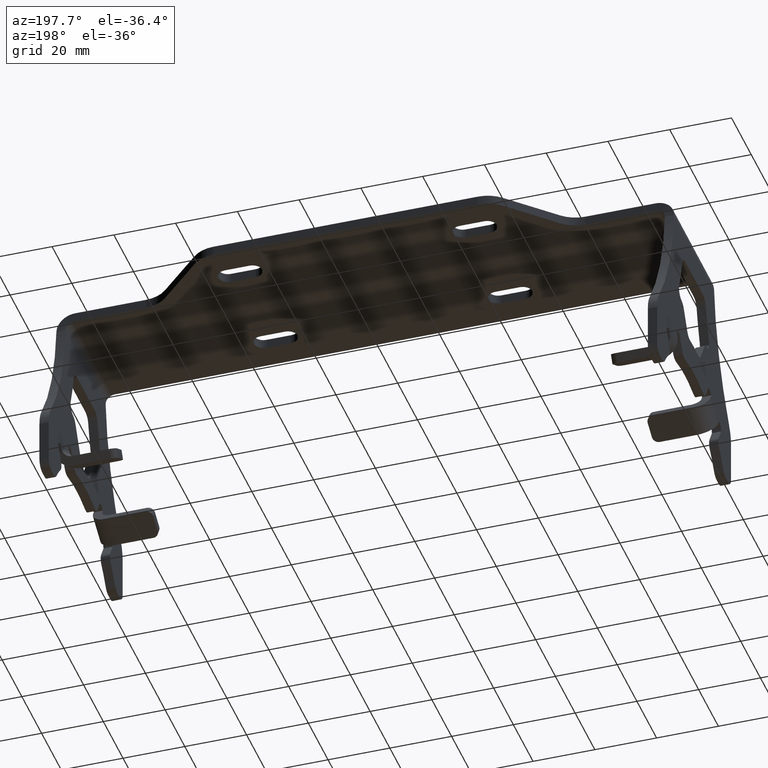
[diagram: clean part render]
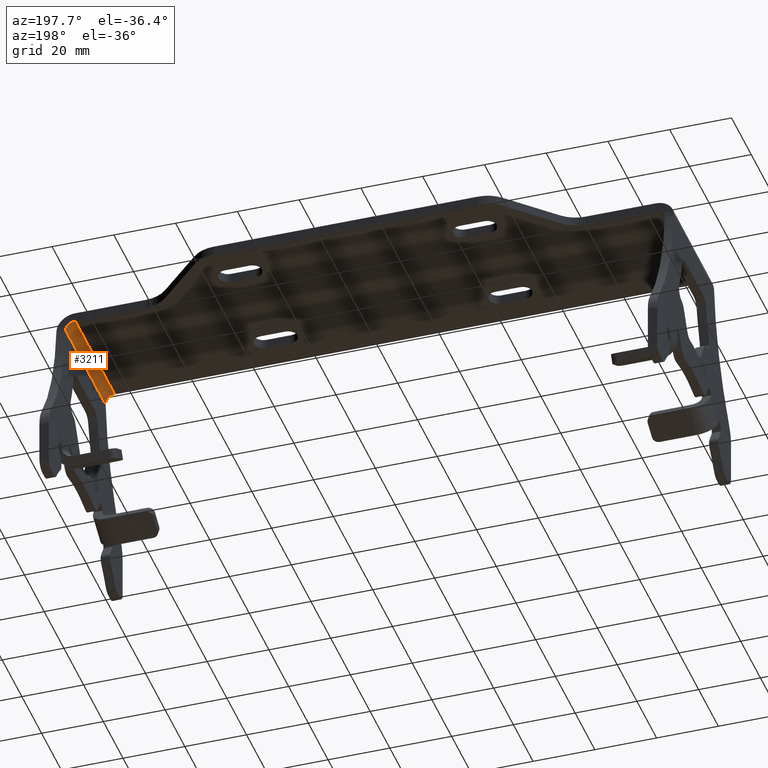
[diagram: same view with one face highlighted and labeled with its STEP entity id]
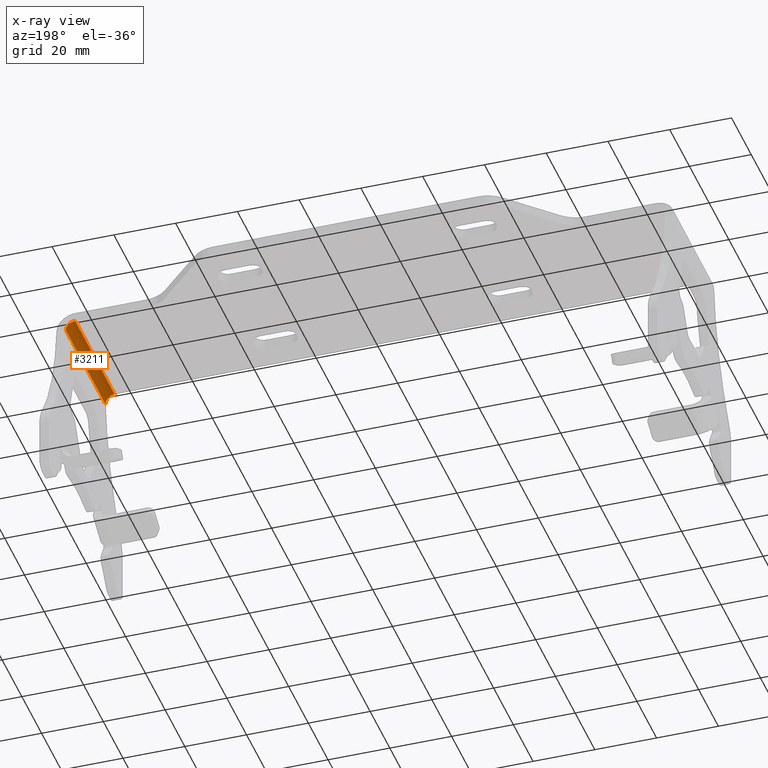
[diagram: x-ray of the same camera — body ghosted, the highlighted face saturated]
A machine part, auxiliary view. The second image highlights one B-rep face of the part: STEP entity #3211.
The next image is the same camera in x-ray: the body ghosted, the highlighted face saturated — about 0% of this face is hidden behind the body in this view.
In plain terms, the highlighted cylindrical surface (edge-blend (fillet) strip) has radius 3 mm, axis along (0, 1, 0).
Its self-contained STEP definition (entity closure, byte-faithful):
#19=B_SPLINE_CURVE_WITH_KNOTS('',3,(#4917,#4918,#4919,#4920,#4921,#4922,
#4923,#4924,#4925,#4926,#4927,#4928,#4929,#4930),.UNSPECIFIED.,.F.,.F.,
(4,2,2,2,2,2,4),(-0.559564175444713,-0.558436880374042,-0.472086382768004,
-0.35490695638666,-0.23730327061448,-0.119070995263127,-0.0857230420359073),
 .UNSPECIFIED.);
#20=B_SPLINE_CURVE_WITH_KNOTS('',3,(#4933,#4934,#4935,#4936,#4937,#4938,
#4939,#4940,#4941,#4942),.UNSPECIFIED.,.F.,.F.,(4,3,3,4),(0.0853451936557356,
0.288339039607487,0.423668493568235,0.558997504314986),.UNSPECIFIED.);
#200=CYLINDRICAL_SURFACE('',#3440,3.);
#295=FACE_OUTER_BOUND('',#478,.T.);
#478=EDGE_LOOP('',(#2241,#2242,#2243,#2244));
#661=LINE('',#4750,#989);
#715=LINE('',#4932,#1043);
#989=VECTOR('',#3749,10.);
#1043=VECTOR('',#3891,10.);
#1319=VERTEX_POINT('',#4747);
#1320=VERTEX_POINT('',#4749);
#1389=VERTEX_POINT('',#4916);
#1390=VERTEX_POINT('',#4931);
#1633=EDGE_CURVE('',#1320,#1319,#661,.T.);
#1716=EDGE_CURVE('',#1389,#1319,#19,.T.);
#1717=EDGE_CURVE('',#1390,#1389,#715,.T.);
#1718=EDGE_CURVE('',#1390,#1320,#20,.T.);
#2241=ORIENTED_EDGE('',*,*,#1633,.T.);
#2242=ORIENTED_EDGE('',*,*,#1716,.F.);
#2243=ORIENTED_EDGE('',*,*,#1717,.F.);
#2244=ORIENTED_EDGE('',*,*,#1718,.T.);
#3211=ADVANCED_FACE('',(#295),#200,.F.);
#3440=AXIS2_PLACEMENT_3D('',#4915,#3889,#3890);
#3749=DIRECTION('',(0.,-1.,0.));
#3889=DIRECTION('center_axis',(0.,1.,0.));
#3890=DIRECTION('ref_axis',(0.,0.,1.));
#3891=DIRECTION('',(0.,-1.,0.));
#4747=CARTESIAN_POINT('',(97.,-30.2797494342295,-2.99999999999999));
#4749=CARTESIAN_POINT('',(97.,10.279748169484,-2.99999999999999));
#4750=CARTESIAN_POINT('',(97.,-5.,-2.99999999999999));
#4915=CARTESIAN_POINT('Origin',(94.,-10.,-3.));
#4916=CARTESIAN_POINT('',(94.,-30.,0.));
#4917=CARTESIAN_POINT('Ctrl Pts',(94.,-30.,-5.55111512312578E-16));
#4918=CARTESIAN_POINT('Ctrl Pts',(94.0037557117348,-30.,-5.55111512312578E-16));
#4919=CARTESIAN_POINT('Ctrl Pts',(94.0075116749598,-30.0000005321753,-7.05268496411703E-6));
#4920=CARTESIAN_POINT('Ctrl Pts',(94.2989913984207,-30.0000831423892,-0.0011018456227308));
#4921=CARTESIAN_POINT('Ctrl Pts',(94.5850416813174,-30.003266234709,-0.0435708709084867));
#4922=CARTESIAN_POINT('Ctrl Pts',(95.2345596883133,-30.0181536853111,-0.238072887490516));
#4923=CARTESIAN_POINT('Ctrl Pts',(95.5828940093075,-30.032319209503,-0.421917176881392));
#4924=CARTESIAN_POINT('Ctrl Pts',(96.1904786508915,-30.0724288391934,-0.913143299326983));
#4925=CARTESIAN_POINT('Ctrl Pts',(96.4434601592532,-30.0980289274776,-1.21615590715274));
#4926=CARTESIAN_POINT('Ctrl Pts',(96.8197974195734,-30.1613570635728,-1.90319763441976));
#4927=CARTESIAN_POINT('Ctrl Pts',(96.9387487249292,-30.1985339475794,-2.28086384738223));
#4928=CARTESIAN_POINT('Ctrl Pts',(96.9939578703384,-30.2540393963703,-2.77995445186922));
#4929=CARTESIAN_POINT('Ctrl Pts',(97.,-30.2666750868608,-2.89006823261596));
#4930=CARTESIAN_POINT('Ctrl Pts',(97.,-30.2797494342296,-2.99999999999999));
#4931=CARTESIAN_POINT('',(94.,9.99999999999999,0.));
#4932=CARTESIAN_POINT('',(94.,-5.,0.));
#4933=CARTESIAN_POINT('Ctrl Pts',(94.,10.,-1.93511873192165E-12));
#4934=CARTESIAN_POINT('Ctrl Pts',(94.6739608993499,9.99999981973813,-3.23178578789323E-8));
#4935=CARTESIAN_POINT('Ctrl Pts',(95.3452899278493,10.0171389472913,-0.236902929111719));
#4936=CARTESIAN_POINT('Ctrl Pts',(95.8716427246285,10.0514059207382,-0.656346931595108));
#4937=CARTESIAN_POINT('Ctrl Pts',(96.2225451682216,10.074250607402,-0.935976728040659));
#4938=CARTESIAN_POINT('Ctrl Pts',(96.5090135183867,10.1047076951431,-1.29673617255943));
#4939=CARTESIAN_POINT('Ctrl Pts',(96.7033773905012,10.1427683497495,-1.70079724655288));
#4940=CARTESIAN_POINT('Ctrl Pts',(96.8977406260597,10.1808288797045,-2.10485699721636));
#4941=CARTESIAN_POINT('Ctrl Pts',(96.9999999868647,10.2264929267205,-2.55221809372289));
#4942=CARTESIAN_POINT('Ctrl Pts',(96.9999999999981,10.279748169484,-3.00000000000001));